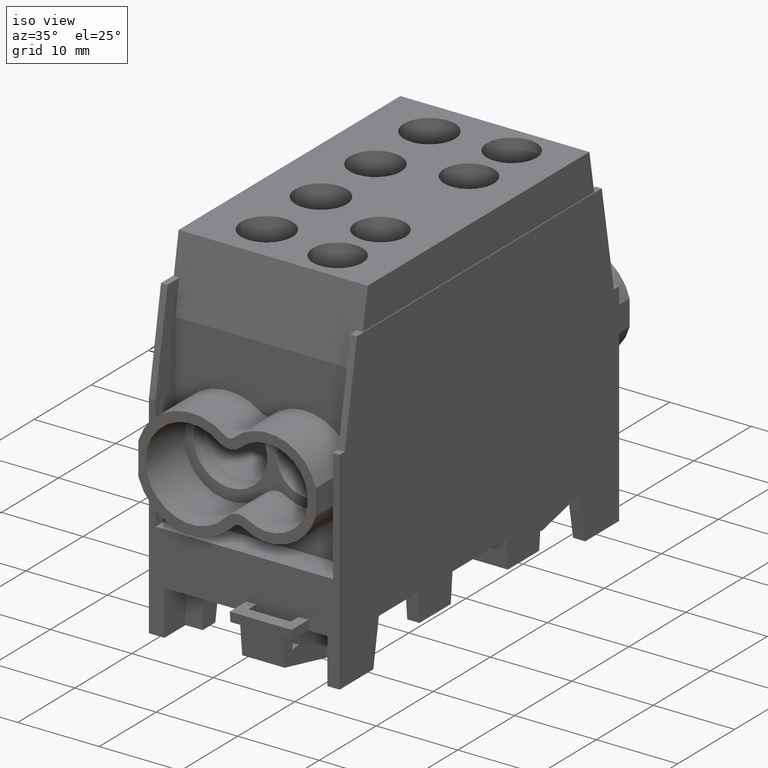
[diagram: clean part render]
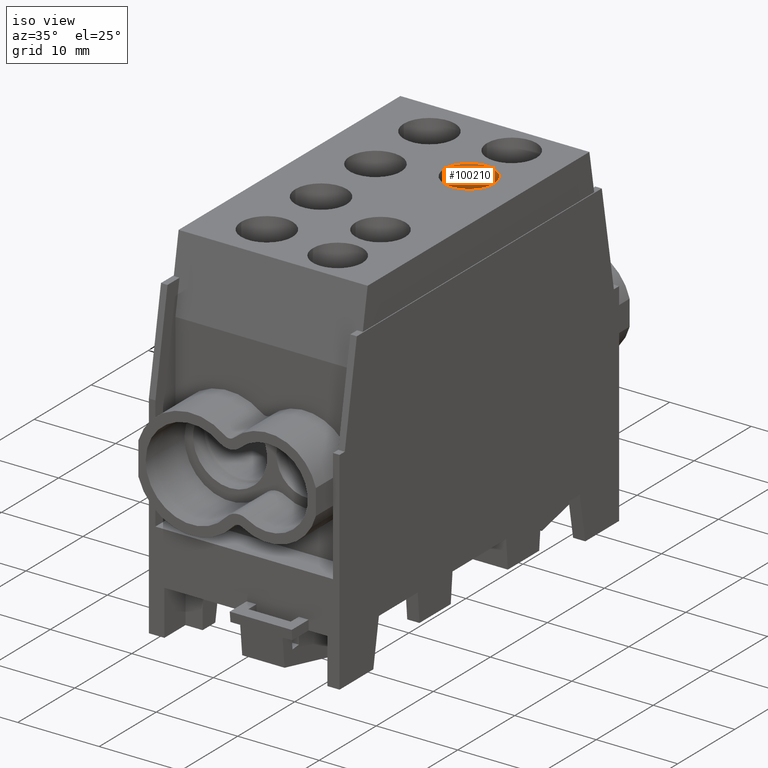
[diagram: same view with one face highlighted and labeled with its STEP entity id]
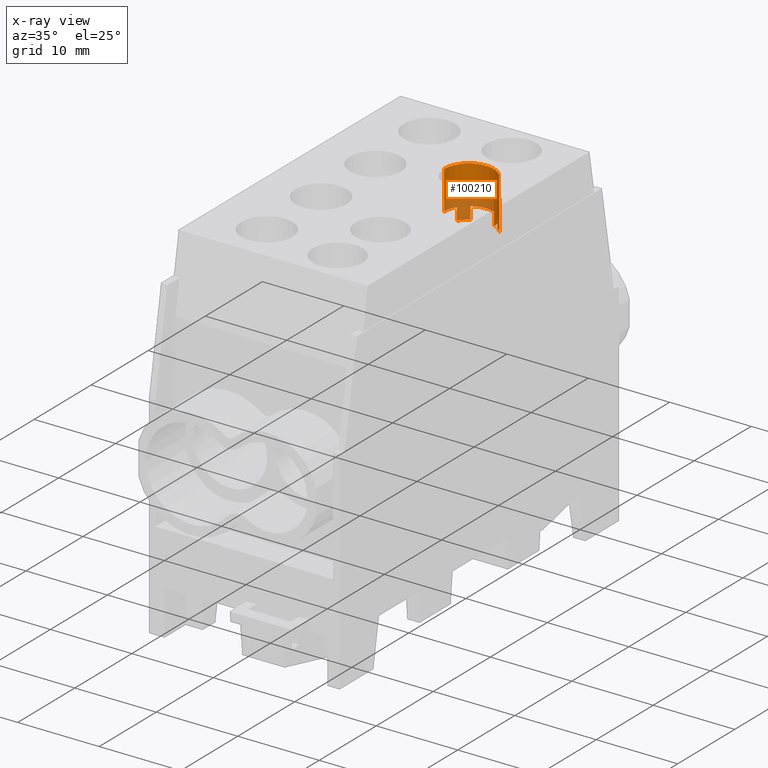
[diagram: x-ray of the same camera — body ghosted, the highlighted face saturated]
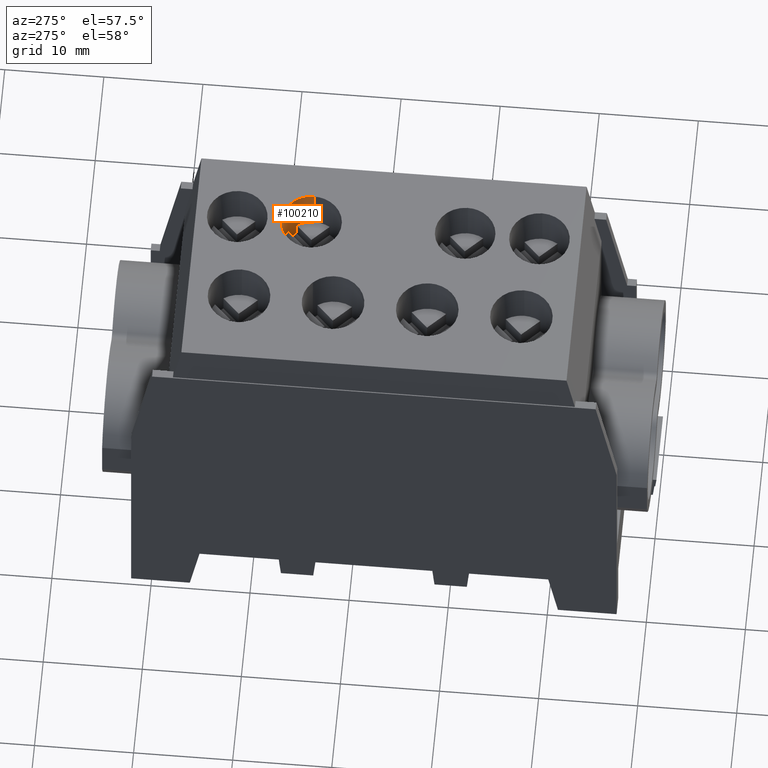
[diagram: same view with one face highlighted and labeled with its STEP entity id]
A machine part, iso view. The second image highlights one B-rep face of the part: STEP entity #100210.
The next image is the same camera in x-ray: the body ghosted, the highlighted face saturated — about 31% of this face is hidden behind the body in this view.
A second angle (auxiliary view) of the same face is appended — the face is thin or edge-on in the first view.
In plain terms, the highlighted cylindrical surface (edge-blend (fillet) strip) has radius 3.05 mm, axis along (0, -0, 1).
Its self-contained STEP definition (entity closure, byte-faithful):
#50300=CARTESIAN_POINT('',(5.00000000000001,7.75000000000001,29.3));
#50310=DIRECTION('',(0.,-1.22108605138914E-16,1.));
#50320=DIRECTION('',(1.,0.,0.));
#50330=AXIS2_PLACEMENT_3D('',#50300,#50310,#50320);
#50340=CIRCLE('',#50330,3.05);
#50370=CARTESIAN_POINT('',(8.05000000000001,7.75000000000001,29.3));
#50380=VERTEX_POINT('',#50370);
#50410=CARTESIAN_POINT('',(1.95,7.75000000000001,29.3));
#50420=VERTEX_POINT('',#50410);
#50430=EDGE_CURVE('',#50380,#50420,#50340,.T.);
#54220=CARTESIAN_POINT('',(1.95,7.75000000000001,29.3));
#54230=DIRECTION('',(0.,-1.22108605138914E-16,1.));
#54240=VECTOR('',#54230,1.);
#54250=LINE('',#54220,#54240);
#54260=CARTESIAN_POINT('',(1.95,7.75000000000001,24.55));
#54270=VERTEX_POINT('',#54260);
#54280=EDGE_CURVE('',#54270,#50420,#54250,.T.);
#54300=CARTESIAN_POINT('',(5.00000000000001,7.75000000000001,24.55));
#54310=DIRECTION('',(0.,-1.22108605138914E-16,1.));
#54320=DIRECTION('',(1.,0.,0.));
#54330=AXIS2_PLACEMENT_3D('',#54300,#54310,#54320);
#54340=CIRCLE('',#54330,3.05);
#54470=CARTESIAN_POINT('',(5.00000000000001,7.75000000000001,23.05));
#54480=DIRECTION('',(0.,-1.22108605138914E-16,1.));
#54490=DIRECTION('',(1.,0.,0.));
#54500=AXIS2_PLACEMENT_3D('',#54470,#54480,#54490);
#54510=CIRCLE('',#54500,3.05);
#54880=CARTESIAN_POINT('',(8.05000000000001,7.75000000000001,24.55));
#54890=VERTEX_POINT('',#54880);
#54920=CARTESIAN_POINT('',(8.05000000000001,7.75000000000001,29.3));
#54930=DIRECTION('',(0.,-1.22108605138914E-16,1.));
#54940=VECTOR('',#54930,1.);
#54950=LINE('',#54920,#54940);
#54960=EDGE_CURVE('',#54890,#50380,#54950,.T.);
#76060=CARTESIAN_POINT('',(7.51022907321225,9.48241161390704,24.55));
#76070=VERTEX_POINT('',#76060);
#76100=EDGE_CURVE('',#54890,#76070,#54340,.T.);
#76840=CARTESIAN_POINT('',(2.40591830020109,9.35413220613776,29.3));
#76850=DIRECTION('',(0.,-1.22108605138914E-16,1.));
#76860=VECTOR('',#76850,1.);
#76870=LINE('',#76840,#76860);
#76880=CARTESIAN_POINT('',(2.40591830020109,9.35413220613776,23.05));
#76890=VERTEX_POINT('',#76880);
#76900=CARTESIAN_POINT('',(2.40591830020109,9.35413220613776,24.55));
#76910=VERTEX_POINT('',#76900);
#76920=EDGE_CURVE('',#76890,#76910,#76870,.T.);
#78290=CARTESIAN_POINT('',(3.39586779386226,10.3440816997989,23.05));
#78300=VERTEX_POINT('',#78290);
#78310=EDGE_CURVE('',#78300,#76890,#54510,.T.);
#78450=CARTESIAN_POINT('',(6.73241161390705,10.2602290732122,23.05));
#78460=VERTEX_POINT('',#78450);
#78490=CARTESIAN_POINT('',(7.51022907321225,9.48241161390704,23.05));
#78500=VERTEX_POINT('',#78490);
#78510=EDGE_CURVE('',#78500,#78460,#54510,.T.);
#81020=CARTESIAN_POINT('',(6.73241161390705,10.2602290732122,29.3));
#81030=DIRECTION('',(0.,-1.22108605138914E-16,1.));
#81040=VECTOR('',#81030,1.);
#81050=LINE('',#81020,#81040);
#81060=CARTESIAN_POINT('',(6.73241161390705,10.2602290732122,24.55));
#81070=VERTEX_POINT('',#81060);
#81080=EDGE_CURVE('',#78460,#81070,#81050,.T.);
#82580=EDGE_CURVE('',#76910,#54270,#54340,.T.);
#88920=CARTESIAN_POINT('',(7.51022907321225,9.48241161390704,29.3));
#88930=DIRECTION('',(0.,-1.22108605138914E-16,1.));
#88940=VECTOR('',#88930,1.);
#88950=LINE('',#88920,#88940);
#88960=EDGE_CURVE('',#78500,#76070,#88950,.T.);
#89710=CARTESIAN_POINT('',(3.39586779386226,10.3440816997989,29.3));
#89720=DIRECTION('',(0.,-1.22108605138914E-16,1.));
#89730=VECTOR('',#89720,1.);
#89740=LINE('',#89710,#89730);
#89750=CARTESIAN_POINT('',(3.39586779386226,10.3440816997989,24.55));
#89760=VERTEX_POINT('',#89750);
#89770=EDGE_CURVE('',#78300,#89760,#89740,.T.);
#90840=EDGE_CURVE('',#81070,#89760,#54340,.T.);
#100020=CARTESIAN_POINT('',(5.00000000000001,7.75000000000001,29.3));
#100030=DIRECTION('',(0.,-1.22108605138914E-16,1.));
#100040=DIRECTION('',(1.,0.,0.));
#100050=AXIS2_PLACEMENT_3D('',#100020,#100030,#100040);
#100060=CYLINDRICAL_SURFACE('',#100050,3.05);
#100070=ORIENTED_EDGE('',*,*,#88960,.T.);
#100080=ORIENTED_EDGE('',*,*,#78510,.F.);
#100090=ORIENTED_EDGE('',*,*,#81080,.F.);
#100100=ORIENTED_EDGE('',*,*,#90840,.F.);
#100110=ORIENTED_EDGE('',*,*,#89770,.T.);
#100120=ORIENTED_EDGE('',*,*,#78310,.F.);
#100130=ORIENTED_EDGE('',*,*,#76920,.F.);
#100140=ORIENTED_EDGE('',*,*,#82580,.F.);
#100150=ORIENTED_EDGE('',*,*,#54280,.F.);
#100160=ORIENTED_EDGE('',*,*,#50430,.T.);
#100170=ORIENTED_EDGE('',*,*,#54960,.T.);
#100180=ORIENTED_EDGE('',*,*,#76100,.F.);
#100190=EDGE_LOOP('',(#100180,#100170,#100160,#100150,#100140,#100130,
#100120,#100110,#100100,#100090,#100080,#100070));
#100200=FACE_OUTER_BOUND('',#100190,.T.);
#100210=ADVANCED_FACE('',(#100200),#100060,.F.);